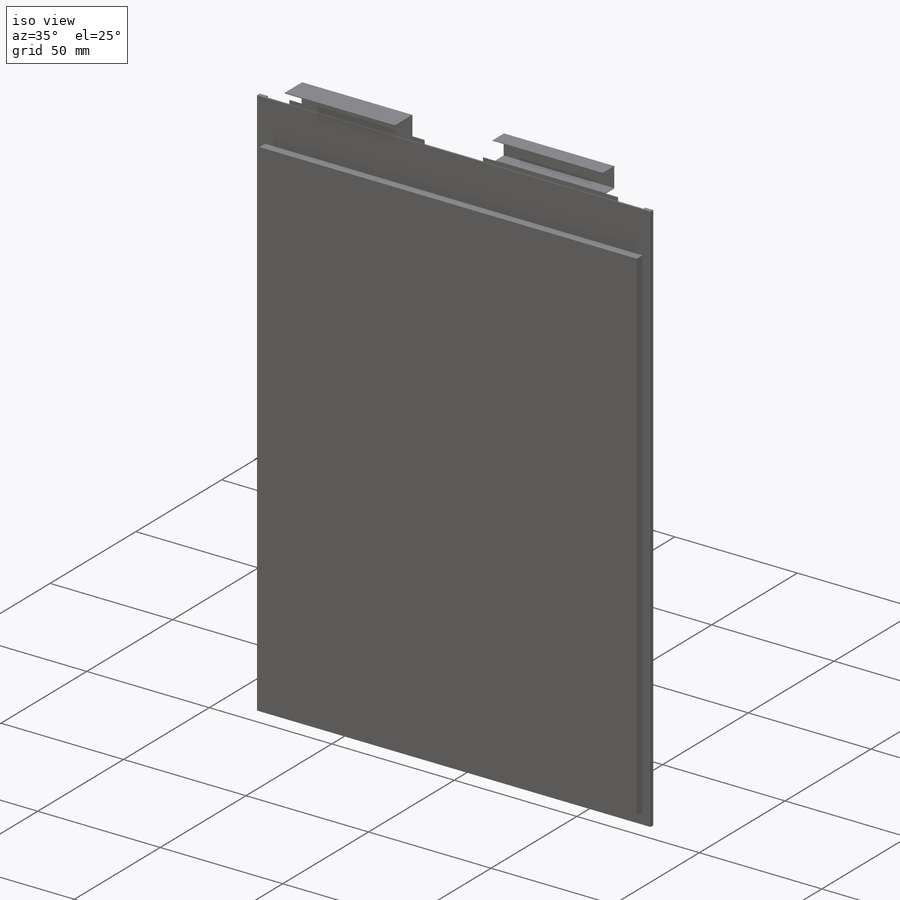
[diagram: iso view]
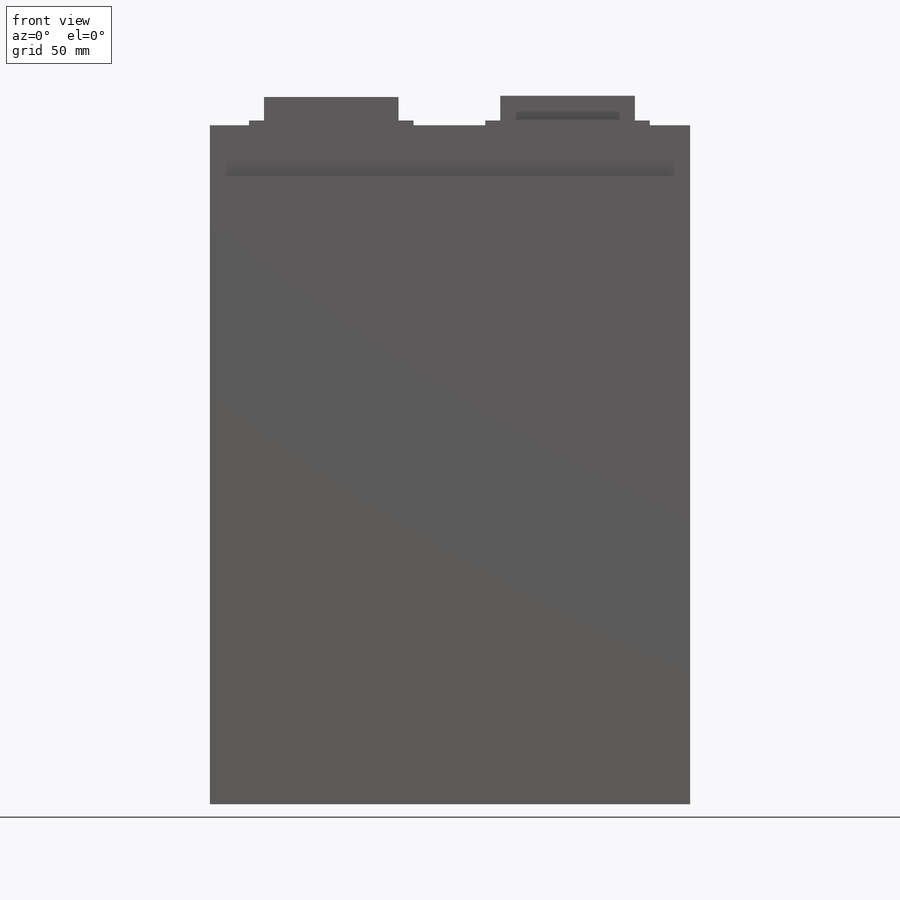
[diagram: front view]
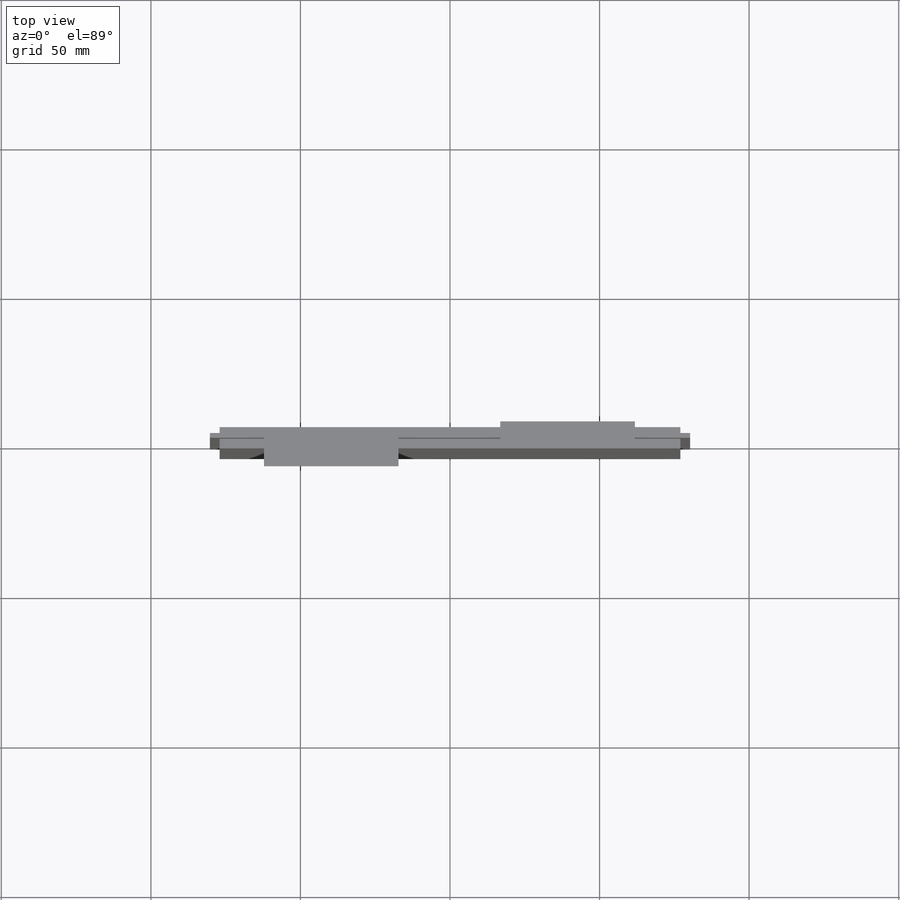
[diagram: top view]
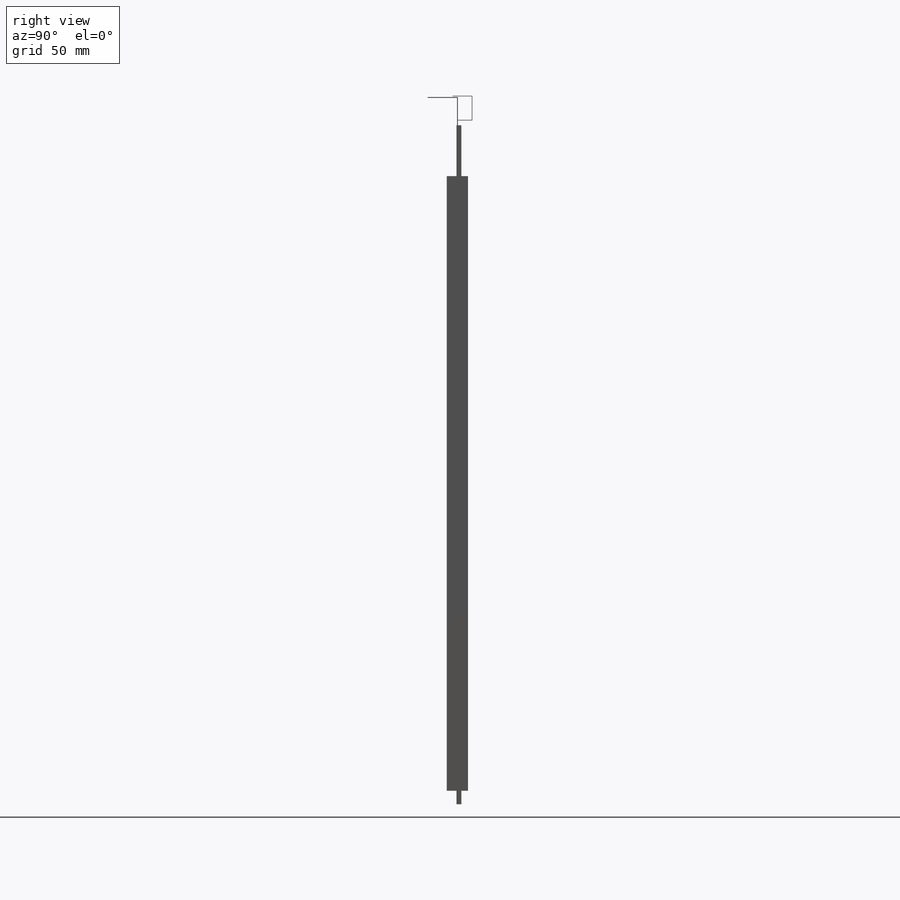
[diagram: right view]
SOLIDWORKS PART (.sldprt)
format: sldprt  version: not decoded by parser v0  size: 404,480 bytes
history: native  units: mm
features: sketch x11, extrude x5, plane x2, material x1 + 15 further entries (+14 scaffold rows collapsed; 1 parser-record rows omitted)
feature tree (49):
  scaffold x14  (default folders/planes/origin — collapsed)
  material  "A123 Amp20"
  "Cut-List-Item2"
  "Cut-List-Item3"
  "Cut-List-Item4"
  "Cut-List-Item5"
  "Cut-List-Item6"
  "Cut-List-Item7"
  "Cut-List-Item8"
  "Cut-List-Item9"
  "Cut-List-Item10"
  "Cut-List-Item11"
  "Cut-List-Item12"
  "Cut-List-Item13"
  "Cut-List-Item14"
  "Cut-List-Item15"
  "Cut-List-Item16"
  sketch  "Sketch1"  dims[D1=160.6mm D2=227.0mm]
  extrude  "Insulation"  Depth=0.3mm
  sketch  "Sketch2"  dims[D1=154.0mm D2=4.5mm D3=17.0mm D4=3.3mm D5=3.3mm]
  extrude  "Main Body"  Depth=3.55mm
  sketch  "Sketch5"
  extrude  "Side Folds"  Depth=1.016mm
  parser-record x1  (decoder bookkeeping rows leaked as tree rows — omitted from the tree; the rows remain in map.json)
  sketch  "Sketch6"  dims[c1.D1=13.5mm c1.D2=1.6mm c1.D3=1.6mm c1.D4=1.6mm c1.D5=1.6mm c1.D6=~32.680092mm c1.D7=24.0mm c1.D8=55.0mm c1.D9=13.1mm c2.D2=~13.222472mm]
  extrude  "Negative Tab Base"  Depth=0.1mm
  sketch  "Sketch7"  dims[D1=24.0mm D2=~48.814089mm D3=13.1mm]
  extrude  "Positive Tab Base"  Depth=0.15mm
  sketch  "Tab Weldment Planes"
  sketch  "Positive Tab Sketch"  dims[c1.D1=0.15mm c1.D2=0.7mm c1.D3=3.434mm c1.D4=12.7mm c1.D5=2.54mm c1.D6=0.15mm c1.D7=7.53mm c1.D8=4.83mm c1.D9=0.15mm c1.D10=0.15mm c1.D11=2.54mm c1.D12=0.15mm c1.D13=0.15mm c2.D1=0.15mm c2.D2=~4.643642mm c3.D1=2.875mm c3.D3=~3.081436mm c4.D1=8.26mm c4.D4=~3.715846mm c5.D1=6.6325mm c5.D5=~0.726908mm c6.D1=0.7mm c6.D6=~2.762305mm c7.D1=~7.145874mm c7.D2=~9.988885mm c8.D1=9.9686mm]
  sketch  "Negative Tab Sketch"  dims[c1.D1=0.2mm c1.D2=0.1mm c1.D3=3.484mm c1.D4=12.7mm c1.D5=0.1mm c1.D6=0.1mm c1.D7=2.94mm c1.D8=1.0mm c1.D9=6.02mm c2.D8=2.94mm c2.D10=0.1mm c2.D5=0.1mm c2.D2=0.1mm c2.D11=0.4mm c2.D12=2.54mm c2.D13=0.4mm c2.D14=0.2mm c2.D15=3.484mm c2.D16=12.7mm c2.D17=2.94mm c2.D18=6.02mm c2.D19=2.94mm c2.D20=0.1mm c2.D21=0.1mm c2.D22=0.1mm c2.D23=0.4mm c2.D24=2.54mm c2.D25=0.4mm c2.D1=0.1mm c3.D2=3.484mm c3.D3=2.54mm c3.D4=2.54mm c3.D5=0.4mm c3.D6=12.7mm c3.D7=0.2mm c3.D8=0.4mm c3.D9=6.02mm c3.D10=7.034mm c3.D11=0.1mm c3.D12=0.15mm c4.D11=0.4mm c4.D13=0.1mm c4.D14=0.1mm c4.D1=~0.34124mm c4.D2=~4.39585mm c4.D3=~3.428874mm c4.D4=~3.748523mm c4.D5=0.6401mm c4.D6=~2.48701mm c5.D1=0.4mm c5.D2=~4.90385mm]
  plane  "Plane5"
  sketch  "Sketch110"  dims[D1=45.0mm D2=0.3mm]
  sketch  "Negative Tab"
  plane  "Plane6"
  sketch  "Sketch113"  dims[D1=45.0mm D2=0.2mm]
decode coverage: 13 of 16 modeling features carry decoded parameters; 15 rows unclassified (native names shown)
note: ~ marks probable driven/reference dimensions
note: suppression state not decoded; provenance and decode notes live in map.json
